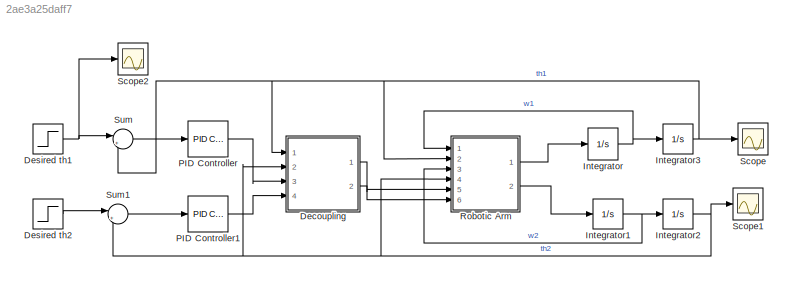
MODEL slx_2ae3a25daff7
KIND model
CONFIG AbsTol = auto
CONFIG EnableMultiTasking = off
CONFIG FixedStep = 0.0000001
CONFIG MaxStep = auto
CONFIG MinStep = auto
CONFIG RelTol = 1e-1
CONFIG SampleTimeConstraint = Unconstrained
CONFIG Solver = FixedStepAuto
CONFIG SolverName = FixedStepAuto
CONFIG StartTime = 0.0
CONFIG StopTime = 2
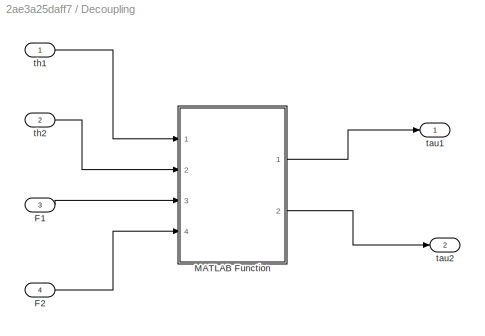
BLOCK [SubSystem] Decoupling
  Ports = [4, 2]
  RequestExecContextInheritance = off
BLOCK [Inport] Decoupling/F1
  Port = 3
BLOCK [Inport] Decoupling/F2
  Port = 4
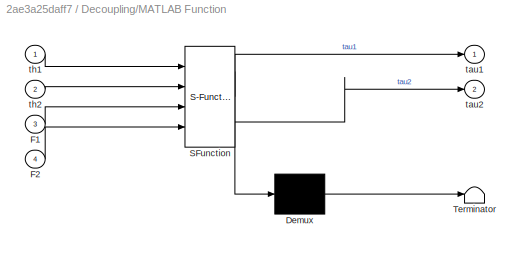
BLOCK [SubSystem] Decoupling/MATLAB Function
  ErrorFcn = Stateflow.Translate.translate
  PermitHierarchicalResolution = ExplicitOnly
  Ports = [4, 2]
  RequestExecContextInheritance = off
  SFBlockType = MATLAB Function
  TreatAsAtomicUnit = on
BLOCK [Demux] Decoupling/MATLAB Function/ Demux 
  Outputs = 1
  Ports = [1, 1]
BLOCK [S-Function] Decoupling/MATLAB Function/ SFunction 
  EnableBusSupport = on
  FunctionName = sf_sfun
  PortCounts = [4 3]
  Ports = [4, 3]
  SFcnIsStateOwnerBlock = off
  SFunctionDeploymentMode = off
  Tag = Stateflow S-Function 2
BLOCK [Terminator] Decoupling/MATLAB Function/ Terminator 
BLOCK [Inport] Decoupling/MATLAB Function/F1
  Port = 3
BLOCK [Inport] Decoupling/MATLAB Function/F2
  Port = 4
BLOCK [Outport] Decoupling/MATLAB Function/tau1
BLOCK [Outport] Decoupling/MATLAB Function/tau2
  Port = 2
BLOCK [Inport] Decoupling/MATLAB Function/th1
BLOCK [Inport] Decoupling/MATLAB Function/th2
  Port = 2
BLOCK [Outport] Decoupling/tau1
BLOCK [Outport] Decoupling/tau2
  Port = 2
BLOCK [Inport] Decoupling/th1
BLOCK [Inport] Decoupling/th2
  Port = 2
BLOCK [Step] Desired th1
  After = 0.25*pi
  SampleTime = 0
  Time = 0
BLOCK [Step] Desired th2
  After = 1.75*pi
  SampleTime = 0
  Time = 0
BLOCK [Integrator] Integrator
  InitialCondition = 0.1
  LowerSaturationLimit = -10000
  Ports = [1, 1]
  UpperSaturationLimit = 10000
BLOCK [Integrator] Integrator1
  InitialCondition = 0.1
  LowerSaturationLimit = -10000
  Ports = [1, 1]
  UpperSaturationLimit = 10000
BLOCK [Integrator] Integrator2
  InitialCondition = 0.001
  LowerSaturationLimit = -10000
  Ports = [1, 1]
  UpperSaturationLimit = 10000
BLOCK [Integrator] Integrator3
  InitialCondition = 0.001
  LowerSaturationLimit = -10000
  Ports = [1, 1]
  UpperSaturationLimit = 10000
BLOCK [Reference] PID Controller  REF=simulink/Continuous/PID Controller
  Ports = [1, 1]
  SourceBlock = simulink/Continuous/PID Controller
  SourceProductBaseCode = SL
  SourceType = PID 1dof
BLOCK [Reference] PID Controller1  REF=simulink/Continuous/PID Controller
  Ports = [1, 1]
  SourceBlock = simulink/Continuous/PID Controller
  SourceProductBaseCode = SL
  SourceType = PID 1dof
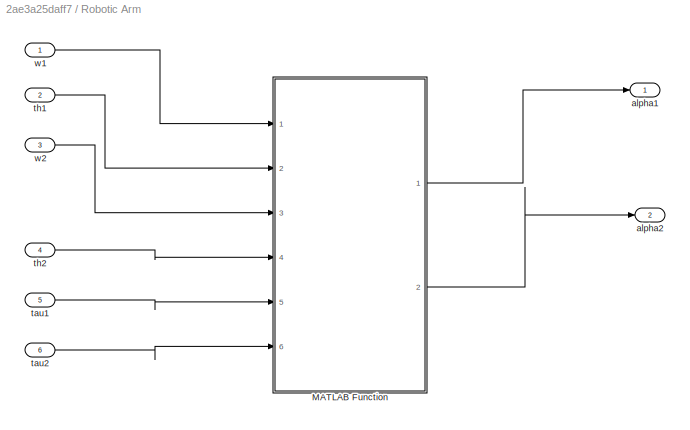
BLOCK [SubSystem] Robotic Arm
  Ports = [6, 2]
  RequestExecContextInheritance = off
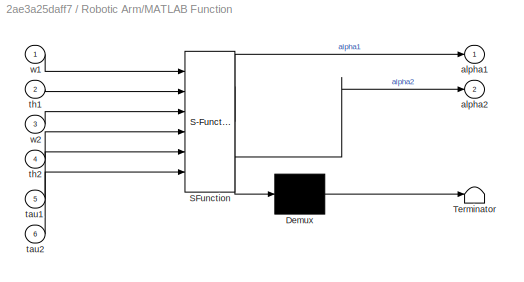
BLOCK [SubSystem] Robotic Arm/MATLAB Function
  ErrorFcn = Stateflow.Translate.translate
  PermitHierarchicalResolution = ExplicitOnly
  Ports = [6, 2]
  RequestExecContextInheritance = off
  SFBlockType = MATLAB Function
  TreatAsAtomicUnit = on
BLOCK [Demux] Robotic Arm/MATLAB Function/ Demux 
  Outputs = 1
  Ports = [1, 1]
BLOCK [S-Function] Robotic Arm/MATLAB Function/ SFunction 
  EnableBusSupport = on
  FunctionName = sf_sfun
  PortCounts = [6 3]
  Ports = [6, 3]
  SFcnIsStateOwnerBlock = off
  SFunctionDeploymentMode = off
  Tag = Stateflow S-Function 1
BLOCK [Terminator] Robotic Arm/MATLAB Function/ Terminator 
BLOCK [Outport] Robotic Arm/MATLAB Function/alpha1
BLOCK [Outport] Robotic Arm/MATLAB Function/alpha2
  Port = 2
BLOCK [Inport] Robotic Arm/MATLAB Function/tau1
  Port = 5
BLOCK [Inport] Robotic Arm/MATLAB Function/tau2
  Port = 6
BLOCK [Inport] Robotic Arm/MATLAB Function/th1
  Port = 2
BLOCK [Inport] Robotic Arm/MATLAB Function/th2
  Port = 4
BLOCK [Inport] Robotic Arm/MATLAB Function/w1
BLOCK [Inport] Robotic Arm/MATLAB Function/w2
  Port = 3
BLOCK [Outport] Robotic Arm/alpha1
BLOCK [Outport] Robotic Arm/alpha2
  Port = 2
BLOCK [Inport] Robotic Arm/tau1
  Port = 5
BLOCK [Inport] Robotic Arm/tau2
  Port = 6
BLOCK [Inport] Robotic Arm/th1
  Port = 2
BLOCK [Inport] Robotic Arm/th2
  Port = 4
BLOCK [Inport] Robotic Arm/w1
BLOCK [Inport] Robotic Arm/w2
  Port = 3
BLOCK [Scope] Scope
  Floating = off
  NumInputPorts = 1
  Ports = [1]
  ScopeSpecificationString = Simulink.scopes.TimeScopeBlockCfg('CurrentConfiguration', extmgr.ConfigurationSet(extmgr.Configuration('Core','General UI',true),extmgr.Configuration('Core','Source UI',true),extmgr.Configuration('Sources','WiredSimulink',true),extmgr.Configuration('Visuals','Time Domain',true,'SerializedDisplays',{struct('MinYLimReal','-457572.09967','MaxYLimReal','50841.38152','YLabelReal','','MinYLimMag','    0...<+1388ch>
BLOCK [Scope] Scope1
  Floating = off
  NumInputPorts = 1
  Ports = [1]
  ScopeSpecificationString = Simulink.scopes.TimeScopeBlockCfg('CurrentConfiguration', extmgr.ConfigurationSet(extmgr.Configuration('Core','General UI',true),extmgr.Configuration('Core','Source UI',true),extmgr.Configuration('Sources','WiredSimulink',true,'DataLoggingVariableName','ScopeData1'),extmgr.Configuration('Visuals','Time Domain',true,'SerializedDisplays',{struct('MinYLimReal','-1161444042910765416448.00000','MaxYLim...<+1561ch>
BLOCK [Scope] Scope2
  Floating = off
  NumInputPorts = 1
  Ports = [1]
  ScopeSpecificationString = Simulink.scopes.TimeScopeBlockCfg('CurrentConfiguration', extmgr.ConfigurationSet(extmgr.Configuration('Core','General UI',true),extmgr.Configuration('Core','Source UI',true),extmgr.Configuration('Sources','WiredSimulink',true,'DataLoggingVariableName','ScopeData1'),extmgr.Configuration('Visuals','Time Domain',true,'SerializedDisplays',{struct('MinYLimReal','0.6854','MaxYLimReal','0.8854','YLabelR...<+1389ch>
BLOCK [Sum] Sum
  Inputs = |+-
  Ports = [2, 1]
BLOCK [Sum] Sum1
  Inputs = |+-
  Ports = [2, 1]
LINE Decoupling/F1:1 -> Decoupling/MATLAB Function:3
LINE Decoupling/F2:1 -> Decoupling/MATLAB Function:4
LINE Decoupling/MATLAB Function:1 -> Decoupling/tau1:1
LINE Decoupling/MATLAB Function:2 -> Decoupling/tau2:1
LINE Decoupling/th1:1 -> Decoupling/MATLAB Function:1
LINE Decoupling/th2:1 -> Decoupling/MATLAB Function:2
LINE Decoupling:1 -> Robotic Arm:5
LINE Decoupling:2 -> Robotic Arm:6
NET Desired th1:1 -> Scope2:1, Sum:1
LINE Desired th2:1 -> Sum1:1
NET Integrator1:1 -> Integrator2:1, Robotic Arm:3
NET Integrator2:1 -> Decoupling:2, Robotic Arm:4, Scope1:1, Sum1:2
NET Integrator3:1 -> Decoupling:1, Robotic Arm:2, Scope:1, Sum:2
NET Integrator:1 -> Integrator3:1, Robotic Arm:1
LINE PID Controller1:1 -> Decoupling:4
LINE PID Controller:1 -> Decoupling:3
LINE Robotic Arm/MATLAB Function:1 -> Robotic Arm/alpha1:1
LINE Robotic Arm/MATLAB Function:2 -> Robotic Arm/alpha2:1
LINE Robotic Arm/tau1:1 -> Robotic Arm/MATLAB Function:5
LINE Robotic Arm/tau2:1 -> Robotic Arm/MATLAB Function:6
LINE Robotic Arm/th1:1 -> Robotic Arm/MATLAB Function:2
LINE Robotic Arm/th2:1 -> Robotic Arm/MATLAB Function:4
LINE Robotic Arm/w1:1 -> Robotic Arm/MATLAB Function:1
LINE Robotic Arm/w2:1 -> Robotic Arm/MATLAB Function:3
LINE Robotic Arm:1 -> Integrator:1
LINE Robotic Arm:2 -> Integrator1:1
LINE Sum1:1 -> PID Controller1:1
LINE Sum:1 -> PID Controller:1
note: NET lines group one-source signal fan-out (src -> all destinations, sorted); 1:1 wires keep LINE
CHART Robotic Arm/MATLAB Function states=1 transitions=1
  STATE_LABEL 'eML_blk_kernel()'
  STATE_LABEL 'SCRIPT:\nfunction [alpha1,alpha2] = fcn(w1,th1,w2,th2,tau1,tau2)\n    m1=1;\n    m2=1;\n    l1=0.2;\n    l2=0.2;\n    g=9.81;\n    \n    alpha2 = (tau2*((m1+m2)*l1^2 + m2*l2^2 + 2*m2*l1*l2*cos(th2))+(-m2*l1*l2*sin(th2)*(w1^2)-m2*g*l2*sin(th1+th2))*((m1+m2)*(l1^2) +m2*(l2^2) + 2*m2*l1*l2*cos(th2))-tau1*(m2*(l2^2)+ m2*l1*l2*cos(th2))-(2*m2*l1*l2*sin(th2)*w1*w2 + m2*l1*l2*sin(th2)*(w2^2)-(m1+m2)*g*l1*sin(th1...<+374ch>'
CHART Decoupling/MATLAB Function states=1 transitions=1
  STATE_LABEL 'eML_blk_kernel()'
  STATE_LABEL 'SCRIPT:\nfunction [tau1,tau2] = fcn(th1, th2, F1, F2)\n   l1 = 0.2;\n   l2 = 0.2;\n   J = [l2*cos(th1+th2)+l1*cos(th1), l2*cos(th1+th2);\n         l2*sin(th1+th2)+l1*sin(th1), l2*sin(th1+th2)];\n   tau1 = J(1,1)*F1 + J(1,2)*F2;\n   tau2 = J(2,1)*F1 + J(2,2)*F2;\n   '
CHART  states=0 transitions=0
CHART  states=0 transitions=0
